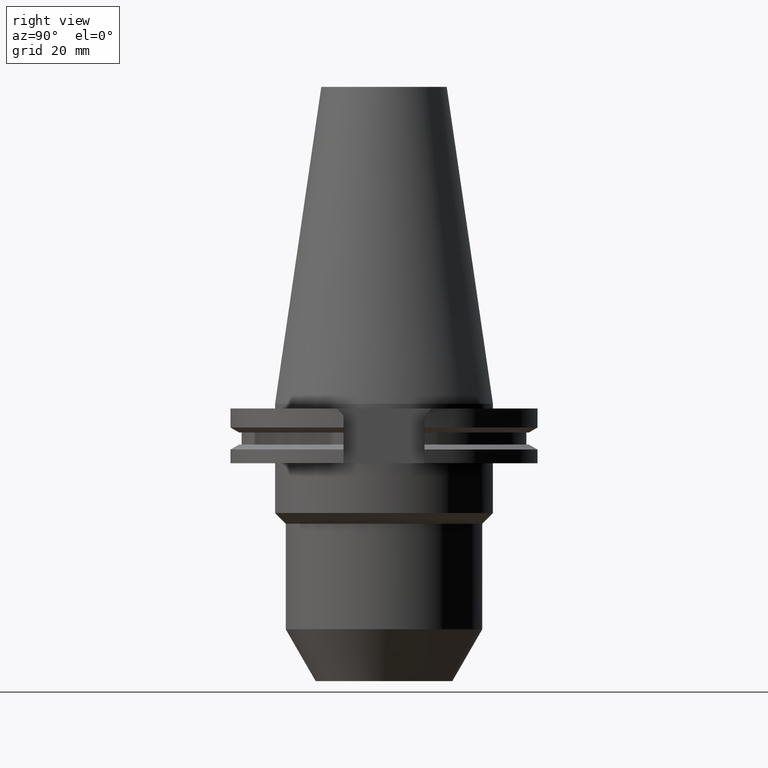
[diagram: clean part render]
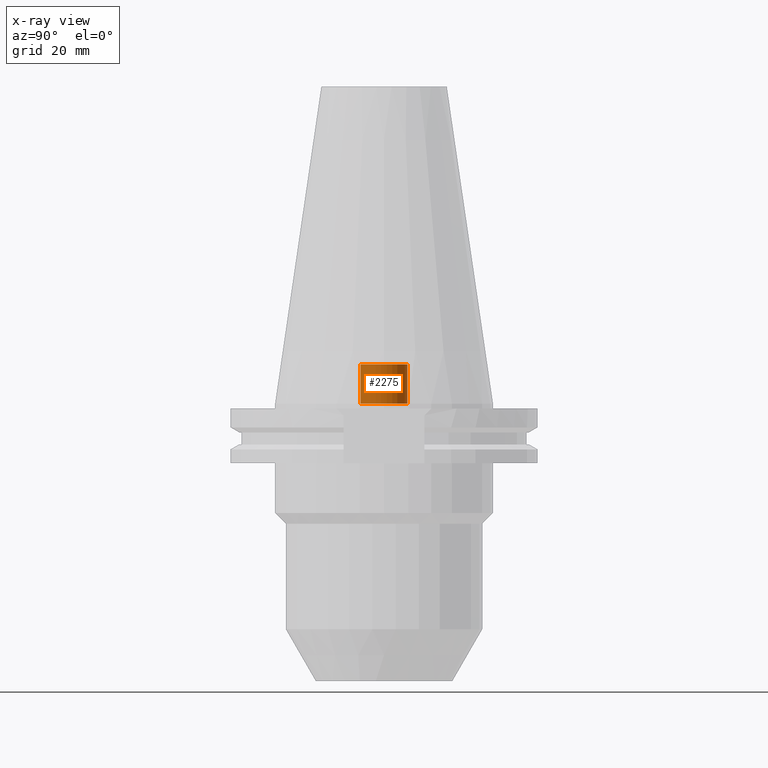
[diagram: x-ray — body ghosted, one internal face saturated and labeled with its STEP entity id]
A machine part, right view, then the same camera in x-ray: the body is ghosted and one INTERNAL B-rep face — a face not visible from any outside direction — is saturated and labeled: STEP entity #2275.
In plain terms, the highlighted cylindrical surface (edge-blend (fillet) strip) has radius 7.5 mm, axis along (0, 0, 1).
Its self-contained STEP definition (entity closure, byte-faithful):
#1098=DIRECTION('',(0.E0,0.E0,1.E0));
#1099=VECTOR('',#1098,1.26E1);
#1100=CARTESIAN_POINT('',(0.E0,7.5E0,1.278976924368E-13));
#1101=LINE('',#1100,#1099);
#1105=CARTESIAN_POINT('',(0.E0,0.E0,1.421085471520E-13));
#1106=DIRECTION('',(0.E0,0.E0,1.E0));
#1107=DIRECTION('',(0.E0,-1.E0,0.E0));
#1108=AXIS2_PLACEMENT_3D('',#1105,#1106,#1107);
#1113=DIRECTION('',(0.E0,0.E0,1.E0));
#1114=VECTOR('',#1113,1.26E1);
#1115=CARTESIAN_POINT('',(0.E0,-7.5E0,1.278976924368E-13));
#1116=LINE('',#1115,#1114);
#1136=CARTESIAN_POINT('',(0.E0,0.E0,1.26E1));
#1137=DIRECTION('',(0.E0,0.E0,1.E0));
#1138=DIRECTION('',(0.E0,-1.E0,0.E0));
#1139=AXIS2_PLACEMENT_3D('',#1136,#1137,#1138);
#1312=CARTESIAN_POINT('',(0.E0,7.5E0,1.278976924368E-13));
#1313=VERTEX_POINT('',#1312);
#1314=CARTESIAN_POINT('',(0.E0,-7.5E0,1.278976924368E-13));
#1315=VERTEX_POINT('',#1314);
#1316=CARTESIAN_POINT('',(0.E0,7.5E0,1.26E1));
#1317=VERTEX_POINT('',#1316);
#1318=CARTESIAN_POINT('',(0.E0,-7.5E0,1.26E1));
#1319=VERTEX_POINT('',#1318);
#2261=CARTESIAN_POINT('',(0.E0,0.E0,-9.8425E1));
#2262=DIRECTION('',(0.E0,0.E0,1.E0));
#2263=DIRECTION('',(0.E0,1.E0,0.E0));
#2264=AXIS2_PLACEMENT_3D('',#2261,#2262,#2263);
#2265=CYLINDRICAL_SURFACE('',#2264,7.5E0);
#2267=ORIENTED_EDGE('',*,*,#2266,.T.);
#2269=ORIENTED_EDGE('',*,*,#2268,.F.);
#2271=ORIENTED_EDGE('',*,*,#2270,.F.);
#2272=ORIENTED_EDGE('',*,*,#2254,.T.);
#2273=EDGE_LOOP('',(#2267,#2269,#2271,#2272));
#2274=FACE_OUTER_BOUND('',#2273,.F.);
#1109=CIRCLE('',#1108,7.5E0);
#1140=CIRCLE('',#1139,7.5E0);
#2254=EDGE_CURVE('',#1315,#1313,#1109,.T.);
#2266=EDGE_CURVE('',#1313,#1317,#1101,.T.);
#2268=EDGE_CURVE('',#1319,#1317,#1140,.T.);
#2270=EDGE_CURVE('',#1315,#1319,#1116,.T.);
#2275=ADVANCED_FACE('',(#2274),#2265,.F.);